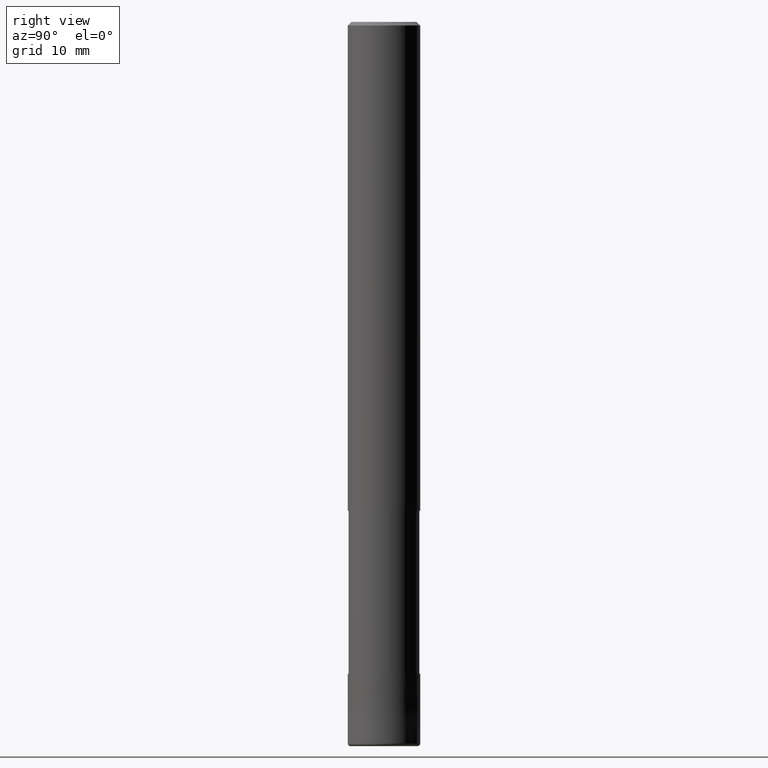
[diagram: clean part render]
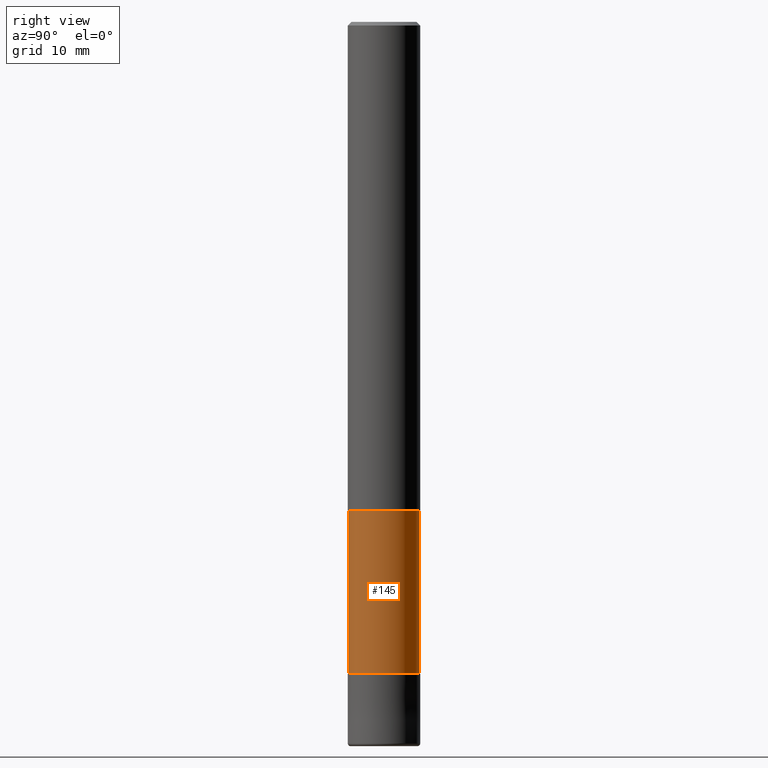
[diagram: same view with one face highlighted and labeled with its STEP entity id]
A machine part, right view. The second image highlights one B-rep face of the part: STEP entity #145.
In plain terms, the highlighted cylindrical surface (edge-blend (fillet) strip) has radius 3.9049 mm, axis along (-0, -0, 1).
Its self-contained STEP definition (entity closure, byte-faithful):
#145=ADVANCED_FACE('',(#336),#337,.T.);
#151=VERTEX_POINT('',#343);
#155=VERTEX_POINT('',#347);
#161=EDGE_CURVE('',#151,#155,#356,.T.);
#163=EDGE_CURVE('',#151,#175,#358,.T.);
#175=VERTEX_POINT('',#372);
#215=EDGE_CURVE('',#233,#175,#415,.T.);
#233=VERTEX_POINT('',#436);
#263=EDGE_CURVE('',#155,#233,#471,.T.);
#336=FACE_OUTER_BOUND('',#548,.T.);
#337=CYLINDRICAL_SURFACE('',#549,3.90495);
#343=CARTESIAN_POINT('',(0.0,3.90495,-54.0));
#347=CARTESIAN_POINT('',(0.0,3.90495,-72.0));
#356=LINE('',#573,#574);
#358=CIRCLE('',#577,3.90495);
#372=CARTESIAN_POINT('',(4.78202658135869E-016,-3.90495,-54.0));
#415=LINE('',#649,#650);
#436=CARTESIAN_POINT('',(4.78202658135869E-016,-3.90495,-72.0));
#471=CIRCLE('',#716,3.90495);
#548=EDGE_LOOP('',(#794,#795,#796,#797));
#549=AXIS2_PLACEMENT_3D('',#798,#799,#800);
#573=CARTESIAN_POINT('',(-4.78202658135869E-016,3.90495,-63.0));
#574=VECTOR('',#819,1.0);
#577=AXIS2_PLACEMENT_3D('',#820,#821,#822);
#649=CARTESIAN_POINT('',(4.78202658135869E-016,-3.90495,-63.0));
#650=VECTOR('',#886,1.0);
#716=AXIS2_PLACEMENT_3D('',#960,#961,#962);
#794=ORIENTED_EDGE('',*,*,#161,.F.);
#795=ORIENTED_EDGE('',*,*,#163,.T.);
#796=ORIENTED_EDGE('',*,*,#215,.F.);
#797=ORIENTED_EDGE('',*,*,#263,.F.);
#798=CARTESIAN_POINT('',(0.0,0.0,-63.0));
#799=DIRECTION('',(-0.0,-0.0,1.0));
#800=DIRECTION('',(0.0,1.0,0.0));
#819=DIRECTION('',(0.0,0.0,-1.0));
#820=CARTESIAN_POINT('',(0.0,0.0,-54.0));
#821=DIRECTION('',(0.0,0.0,-1.0));
#822=DIRECTION('',(0.0,1.0,0.0));
#886=DIRECTION('',(-0.0,-0.0,1.0));
#960=CARTESIAN_POINT('',(0.0,0.0,-72.0));
#961=DIRECTION('',(0.0,0.0,-1.0));
#962=DIRECTION('',(0.0,1.0,0.0));